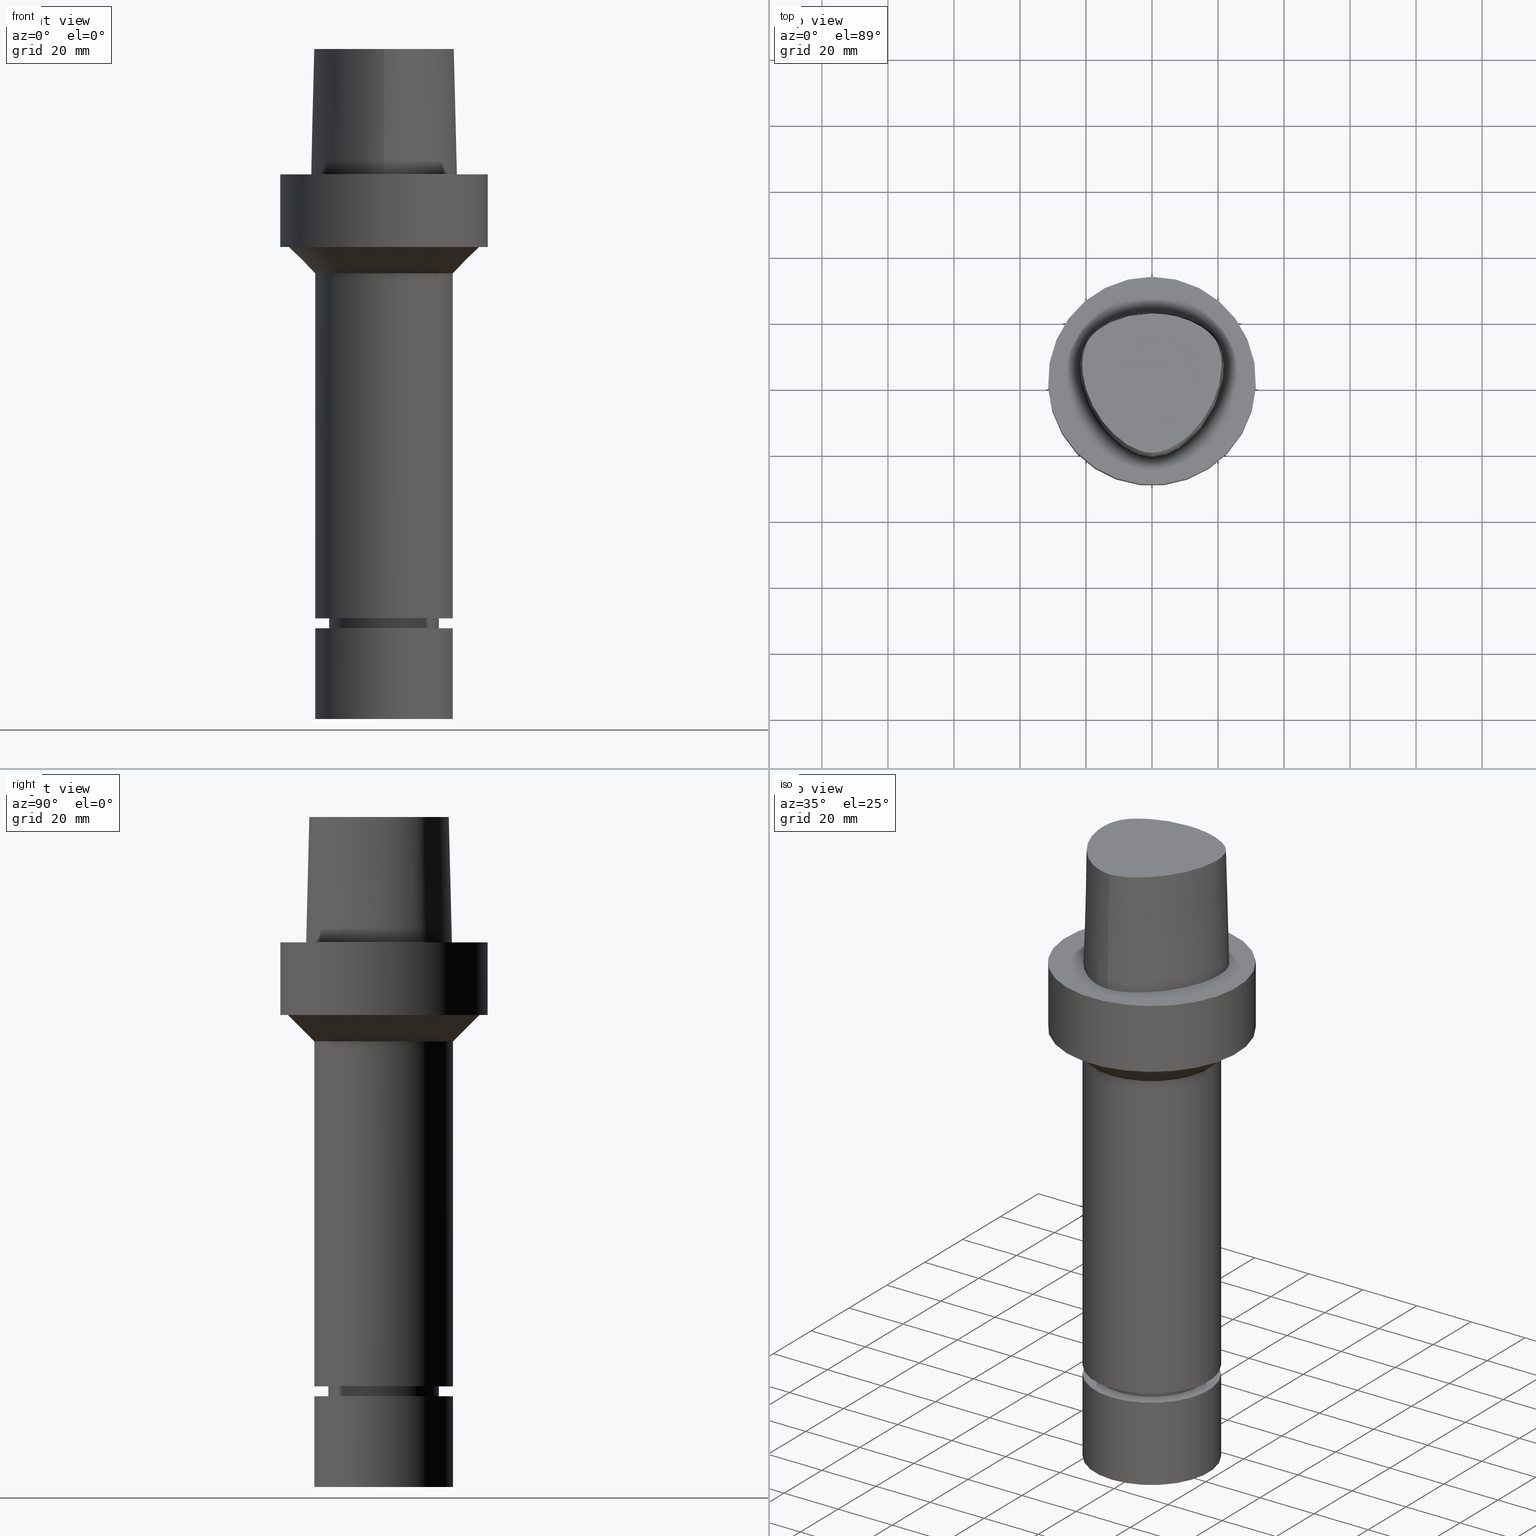
[diagram: canonical four-view strip — front | top / right | iso, engineering-drawing reading convention]
A machine part, canonical four-view strip (front | top / right | iso — engineering-drawing reading convention). The complete STEP part file that produces these views, byte-faithful:
ISO-10303-21;
HEADER;
FILE_DESCRIPTION((''),'1');
FILE_NAME('V:/90_\X2\53D65F9730C730FC30BF\X0\/00_\X2\6DE18DEF30C730FC30BF\X0\/ALL/CAPTO-BKUS\X2\52A05DE556F3\X0\_201801/C6-MEGAER/C6-MEGAER25-165NL.stp','2018-02-01T08:44:06',(''),(''),'Spatial Interop R21 SP3','Kubotek KeyCreator 2011 V10.0.2 (22737)',' ');
FILE_SCHEMA(('automotive_design'));
ENDSEC;
DATA;
#1=MECHANICAL_DESIGN_GEOMETRIC_PRESENTATION_REPRESENTATION(' ',(#14,#15,#16,#17,#18,#19,#20,#21,#22,#23,#24,#25,#26,#27,#28,#29,#30,#31,#32,#33,#34,#35,#36,#37,#38,#39,#40,#41,#42,#43,#44,#45,#46,#47,#48,#49,#50,#51,#52,#53),#10);
#2=PRODUCT_DEFINITION_CONTEXT('',#54,'design');
#3=APPLICATION_PROTOCOL_DEFINITION('INTERNATIONAL STANDARD','automotive_design',1994,#54);
#4=PRODUCT_CATEGORY_RELATIONSHIP('NONE','NONE',#55,#56);
#5=SHAPE_DEFINITION_REPRESENTATION(#57,#58);
#6=PRODUCT_DEFINITION_CONTEXT('',#59,'design');
#7=APPLICATION_PROTOCOL_DEFINITION('INTERNATIONAL STANDARD','automotive_design',1994,#59);
#8=PRODUCT_CATEGORY_RELATIONSHIP('NONE','NONE',#60,#61);
#9=SHAPE_DEFINITION_REPRESENTATION(#62,#63);
#10= (GEOMETRIC_REPRESENTATION_CONTEXT(3)GLOBAL_UNCERTAINTY_ASSIGNED_CONTEXT((#66))GLOBAL_UNIT_ASSIGNED_CONTEXT((#68,#69,#70))REPRESENTATION_CONTEXT('NONE','WORKSPACE'));
#14=STYLED_ITEM('',(#72),#73);
#15=STYLED_ITEM('',(#74),#75);
#16=STYLED_ITEM('',(#76,#77),#78);
#17=STYLED_ITEM('',(#79,#80),#81);
#18=STYLED_ITEM('',(#82,#83),#84);
#19=STYLED_ITEM('',(#85,#86),#87);
#20=STYLED_ITEM('',(#88),#89);
#21=STYLED_ITEM('',(#90),#91);
#22=STYLED_ITEM('',(#92),#93);
#23=STYLED_ITEM('',(#94),#95);
#24=STYLED_ITEM('',(#96,#97),#98);
#25=STYLED_ITEM('',(#99,#100),#101);
#26=STYLED_ITEM('',(#102,#103),#104);
#27=STYLED_ITEM('',(#105,#106),#107);
#28=STYLED_ITEM('',(#108,#109),#110);
#29=STYLED_ITEM('',(#111),#112);
#30=STYLED_ITEM('',(#113),#114);
#31=STYLED_ITEM('',(#115,#116),#117);
#32=STYLED_ITEM('',(#118),#119);
#33=STYLED_ITEM('',(#120),#121);
#34=STYLED_ITEM('',(#122,#123),#124);
#35=STYLED_ITEM('',(#125,#126),#127);
#36=STYLED_ITEM('',(#128,#129),#130);
#37=STYLED_ITEM('',(#131,#132),#133);
#38=STYLED_ITEM('',(#134,#135),#136);
#39=STYLED_ITEM('',(#137),#138);
#40=STYLED_ITEM('',(#139,#140),#141);
#41=STYLED_ITEM('',(#142,#143),#144);
#42=STYLED_ITEM('',(#145),#146);
#43=STYLED_ITEM('',(#147),#148);
#44=STYLED_ITEM('',(#149),#150);
#45=STYLED_ITEM('',(#151,#152),#153);
#46=STYLED_ITEM('',(#154),#155);
#47=STYLED_ITEM('',(#156),#157);
#48=STYLED_ITEM('',(#158,#159),#160);
#49=STYLED_ITEM('',(#161),#162);
#50=STYLED_ITEM('',(#163),#164);
#51=STYLED_ITEM('',(#165),#166);
#52=STYLED_ITEM('',(#167),#168);
#53=STYLED_ITEM('',(#169,#170),#171);
#54=APPLICATION_CONTEXT(' ');
#55=PRODUCT_CATEGORY('part','NONE');
#56=PRODUCT_RELATED_PRODUCT_CATEGORY('detail',' ',(#172));
#57=PRODUCT_DEFINITION_SHAPE('NONE','NONE',#173);
#58=ADVANCED_BREP_SHAPE_REPRESENTATION('Unnamed[1]',(#136,#174),#10);
#59=APPLICATION_CONTEXT(' ');
#60=PRODUCT_CATEGORY('part','NONE');
#61=PRODUCT_RELATED_PRODUCT_CATEGORY('detail',' ',(#175));
#62=PRODUCT_DEFINITION_SHAPE('NONE','NONE',#176);
#63=ADVANCED_BREP_SHAPE_REPRESENTATION('Unnamed[1]',(#117,#177),#10);
#66=UNCERTAINTY_MEASURE_WITH_UNIT(LENGTH_MEASURE(1.0E-006),#68,'','');
#68= (CONVERSION_BASED_UNIT('MILLIMETRE',#180)LENGTH_UNIT()NAMED_UNIT(#183));
#69= (NAMED_UNIT(#185)PLANE_ANGLE_UNIT()SI_UNIT($,.RADIAN.));
#70= (NAMED_UNIT(#185)SOLID_ANGLE_UNIT()SI_UNIT($,.STERADIAN.));
#72=PRESENTATION_STYLE_ASSIGNMENT((#191));
#73=EDGE_CURVE('Unnamed[1]',#192,#192,#193,.T.);
#74=PRESENTATION_STYLE_ASSIGNMENT((#194));
#75=EDGE_CURVE('Unnamed[1]',#195,#196,#197,.T.);
#76=PRESENTATION_STYLE_ASSIGNMENT((#198));
#77=PRESENTATION_STYLE_ASSIGNMENT((#199));
#78=ADVANCED_FACE('Unnamed[1]',(#200,#201),#202,.T.);
#79=PRESENTATION_STYLE_ASSIGNMENT((#203));
#80=PRESENTATION_STYLE_ASSIGNMENT((#204));
#81=ADVANCED_FACE('Unnamed[1]',(#205),#206,.T.);
#82=PRESENTATION_STYLE_ASSIGNMENT((#207));
#83=PRESENTATION_STYLE_ASSIGNMENT((#208));
#84=ADVANCED_FACE('Unnamed[1]',(#209),#210,.T.);
#85=PRESENTATION_STYLE_ASSIGNMENT((#211));
#86=PRESENTATION_STYLE_ASSIGNMENT((#212));
#87=ADVANCED_FACE('Unnamed[1]',(#213,#214),#215,.T.);
#88=PRESENTATION_STYLE_ASSIGNMENT((#216));
#89=EDGE_CURVE('Unnamed[1]',#217,#218,#219,.T.);
#90=PRESENTATION_STYLE_ASSIGNMENT((#220));
#91=EDGE_CURVE('Unnamed[1]',#221,#221,#222,.T.);
#92=PRESENTATION_STYLE_ASSIGNMENT((#223));
#93=EDGE_CURVE('Unnamed[1]',#224,#224,#225,.T.);
#94=PRESENTATION_STYLE_ASSIGNMENT((#226));
#95=EDGE_CURVE('Unnamed[1]',#227,#227,#228,.T.);
#96=PRESENTATION_STYLE_ASSIGNMENT((#229));
#97=PRESENTATION_STYLE_ASSIGNMENT((#230));
#98=ADVANCED_FACE('Unnamed[1]',(#231,#232),#233,.T.);
#99=PRESENTATION_STYLE_ASSIGNMENT((#234));
#100=PRESENTATION_STYLE_ASSIGNMENT((#235));
#101=ADVANCED_FACE('Unnamed[1]',(#236,#237),#238,.T.);
#102=PRESENTATION_STYLE_ASSIGNMENT((#239));
#103=PRESENTATION_STYLE_ASSIGNMENT((#240));
#104=ADVANCED_FACE('Unnamed[1]',(#241),#242,.T.);
#105=PRESENTATION_STYLE_ASSIGNMENT((#243));
#106=PRESENTATION_STYLE_ASSIGNMENT((#244));
#107=ADVANCED_FACE('Unnamed[1]',(#245),#246,.T.);
#108=PRESENTATION_STYLE_ASSIGNMENT((#247));
#109=PRESENTATION_STYLE_ASSIGNMENT((#248));
#110=ADVANCED_FACE('Unnamed[1]',(#249,#250),#251,.T.);
#111=PRESENTATION_STYLE_ASSIGNMENT((#252));
#112=EDGE_CURVE('Unnamed[1]',#217,#253,#254,.T.);
#113=PRESENTATION_STYLE_ASSIGNMENT((#255));
#114=EDGE_CURVE('Unnamed[1]',#217,#196,#256,.T.);
#115=PRESENTATION_STYLE_ASSIGNMENT((#257));
#116=PRESENTATION_STYLE_ASSIGNMENT((#258));
#117=MANIFOLD_SOLID_BREP('Unnamed[1]',#259);
#118=PRESENTATION_STYLE_ASSIGNMENT((#260));
#119=EDGE_CURVE('Unnamed[1]',#261,#261,#262,.T.);
#120=PRESENTATION_STYLE_ASSIGNMENT((#263));
#121=EDGE_CURVE('Unnamed[1]',#218,#217,#264,.T.);
#122=PRESENTATION_STYLE_ASSIGNMENT((#265));
#123=PRESENTATION_STYLE_ASSIGNMENT((#266));
#124=ADVANCED_FACE('Unnamed[1]',(#267,#268),#269,.T.);
#125=PRESENTATION_STYLE_ASSIGNMENT((#270));
#126=PRESENTATION_STYLE_ASSIGNMENT((#271));
#127=ADVANCED_FACE('Unnamed[1]',(#272,#273),#274,.T.);
#128=PRESENTATION_STYLE_ASSIGNMENT((#275));
#129=PRESENTATION_STYLE_ASSIGNMENT((#276));
#130=ADVANCED_FACE('Unnamed[1]',(#277),#278,.T.);
#131=PRESENTATION_STYLE_ASSIGNMENT((#279));
#132=PRESENTATION_STYLE_ASSIGNMENT((#280));
#133=ADVANCED_FACE('Unnamed[1]',(#281,#282),#283,.T.);
#134=PRESENTATION_STYLE_ASSIGNMENT((#284));
#135=PRESENTATION_STYLE_ASSIGNMENT((#285));
#136=MANIFOLD_SOLID_BREP('Unnamed[1]',#286);
#137=PRESENTATION_STYLE_ASSIGNMENT((#287));
#138=EDGE_CURVE('Unnamed[1]',#288,#288,#289,.T.);
#139=PRESENTATION_STYLE_ASSIGNMENT((#290));
#140=PRESENTATION_STYLE_ASSIGNMENT((#291));
#141=ADVANCED_FACE('Unnamed[1]',(#292),#293,.T.);
#142=PRESENTATION_STYLE_ASSIGNMENT((#294));
#143=PRESENTATION_STYLE_ASSIGNMENT((#295));
#144=ADVANCED_FACE('Unnamed[1]',(#296,#297),#298,.T.);
#145=PRESENTATION_STYLE_ASSIGNMENT((#299));
#146=EDGE_CURVE('Unnamed[1]',#300,#300,#301,.T.);
#147=PRESENTATION_STYLE_ASSIGNMENT((#302));
#148=EDGE_CURVE('Unnamed[1]',#196,#253,#303,.T.);
#149=PRESENTATION_STYLE_ASSIGNMENT((#304));
#150=EDGE_CURVE('Unnamed[1]',#305,#305,#306,.T.);
#151=PRESENTATION_STYLE_ASSIGNMENT((#307));
#152=PRESENTATION_STYLE_ASSIGNMENT((#308));
#153=ADVANCED_FACE('Unnamed[1]',(#309,#310),#311,.T.);
#154=PRESENTATION_STYLE_ASSIGNMENT((#312));
#155=EDGE_CURVE('Unnamed[1]',#313,#313,#314,.T.);
#156=PRESENTATION_STYLE_ASSIGNMENT((#315));
#157=EDGE_CURVE('Unnamed[1]',#316,#316,#317,.T.);
#158=PRESENTATION_STYLE_ASSIGNMENT((#318));
#159=PRESENTATION_STYLE_ASSIGNMENT((#319));
#160=ADVANCED_FACE('Unnamed[1]',(#320,#321),#322,.T.);
#161=PRESENTATION_STYLE_ASSIGNMENT((#323));
#162=EDGE_CURVE('Unnamed[1]',#218,#195,#324,.T.);
#163=PRESENTATION_STYLE_ASSIGNMENT((#325));
#164=EDGE_CURVE('Unnamed[1]',#326,#326,#327,.T.);
#165=PRESENTATION_STYLE_ASSIGNMENT((#328));
#166=EDGE_CURVE('Unnamed[1]',#253,#195,#329,.T.);
#167=PRESENTATION_STYLE_ASSIGNMENT((#330));
#168=EDGE_CURVE('Unnamed[1]',#331,#331,#332,.T.);
#169=PRESENTATION_STYLE_ASSIGNMENT((#333));
#170=PRESENTATION_STYLE_ASSIGNMENT((#334));
#171=ADVANCED_FACE('Unnamed[1]',(#335),#336,.T.);
#172=PRODUCT('Unnamed[1]','Unnamed[1]','PART-Unnamed[1]-DESC',(#337));
#173=PRODUCT_DEFINITION('NONE','NONE',#338,#2);
#174=AXIS2_PLACEMENT_3D('',#339,#340,#341);
#175=PRODUCT('Unnamed[1]','Unnamed[1]','PART-Unnamed[1]-DESC',(#342));
#176=PRODUCT_DEFINITION('NONE','NONE',#343,#6);
#177=AXIS2_PLACEMENT_3D('',#344,#345,#346);
#180=LENGTH_MEASURE_WITH_UNIT(LENGTH_MEASURE(1.0),#347);
#183=DIMENSIONAL_EXPONENTS(1.0,0.0,0.0,0.0,0.0,0.0,0.0);
#185=DIMENSIONAL_EXPONENTS(0.0,0.0,0.0,0.0,0.0,0.0,0.0);
#191=CURVE_STYLE('',#348,POSITIVE_LENGTH_MEASURE(1000.0),#349);
#192=VERTEX_POINT('',#350);
#193=CIRCLE('',#351,16.7500000000017);
#194=CURVE_STYLE('',#352,POSITIVE_LENGTH_MEASURE(1000.0),#353);
#195=VERTEX_POINT('',#354);
#196=VERTEX_POINT('',#355);
#197=B_SPLINE_CURVE_WITH_KNOTS('',3,(#356,#357,#358,#359,#360,#361,#362,#363,#364,#365,#366,#367,#368,#369,#370,#371,#372,#373,#374,#375,#376,#377,#378,#379,#380,#381,#382,#383,#384,#385,#386,#387),.UNSPECIFIED.,.F.,.F.,(4,2,2,2,2,2,2,2,2,2,2,2,2,2,2,4),(6.6151339308743,6.90353802293409,7.19194211499389,7.48034620705369,7.76875029911348,8.3273781966476,8.88600609418171,10.0632582234986,10.5220146921826,10.9807711608666,11.2101493952086,11.4395276295506,11.8982840982346,12.4281394376607,12.8292036497046,13.2302678617486),.UNSPECIFIED.);
#198=SURFACE_STYLE_USAGE(.BOTH.,#388);
#199=CURVE_STYLE('',#389,POSITIVE_LENGTH_MEASURE(1000.0),#390);
#200=FACE_BOUND('',#391,.T.);
#201=FACE_BOUND('',#392,.T.);
#202=CYLINDRICAL_SURFACE('',#393,31.5);
#203=SURFACE_STYLE_USAGE(.BOTH.,#394);
#204=CURVE_STYLE('',#395,POSITIVE_LENGTH_MEASURE(1000.0),#396);
#205=FACE_OUTER_BOUND('',#397,.T.);
#206=B_SPLINE_SURFACE_WITH_KNOTS('',3,3,((#398,#399,#400,#401),(#402,#403,#404,#405),(#406,#407,#408,#409),(#410,#411,#412,#413),(#414,#415,#416,#417),(#418,#419,#420,#421),(#422,#423,#424,#425),(#426,#427,#428,#429),(#430,#431,#432,#433),(#434,#435,#436,#437),(#438,#439,#440,#441),(#442,#443,#444,#445),(#446,#447,#448,#449),(#450,#451,#452,#453),(#454,#455,#456,#457),(#458,#459,#460,#461),(#462,#463,#464,#465),(#466,#467,#468,#469)),.UNSPECIFIED.,.F.,.F.,.F.,(4,1,1,1,1,1,1,1,1,2,1,1,1,1,4),(4,4),(-6.6151339308743,-6.20168806019465,-5.78824218951501,-5.37479631883537,-4.96135044815572,-4.13445870679644,-3.30756696543715,-2.89412109475751,-2.48067522407786,-2.06722935339822,-1.65378348271857,-1.24033761203893,-0.826891741359287,-0.413445870679644,0.0),(-3.8,0.0),.UNSPECIFIED.);
#207=SURFACE_STYLE_USAGE(.BOTH.,#470);
#208=CURVE_STYLE('',#471,POSITIVE_LENGTH_MEASURE(1000.0),#472);
#209=FACE_OUTER_BOUND('',#473,.T.);
#210=CONICAL_SURFACE('',#474,1.0,0.0249931148600041);
#211=SURFACE_STYLE_USAGE(.BOTH.,#475);
#212=CURVE_STYLE('',#476,POSITIVE_LENGTH_MEASURE(1000.0),#477);
#213=FACE_BOUND('',#478,.T.);
#214=FACE_BOUND('',#479,.T.);
#215=CONICAL_SURFACE('',#480,15.4500000000003,0.52359877559807);
#216=CURVE_STYLE('',#481,POSITIVE_LENGTH_MEASURE(1000.0),#482);
#217=VERTEX_POINT('',#483);
#218=VERTEX_POINT('',#484);
#219=B_SPLINE_CURVE_WITH_KNOTS('',3,(#485,#486,#487,#488,#489,#490,#491,#492,#493,#494,#495,#496,#497,#498,#499,#500),.UNSPECIFIED.,.F.,.F.,(4,1,1,1,1,1,1,1,1,1,1,1,1,4),(0.0,0.447924670568964,0.9388024242536,1.50591409090711,2.07314340012323,2.72424957442464,3.2253501842849,3.80982102049476,4.34867996267067,4.85900173381144,5.37972031856977,6.03459825488646,6.61113557741484,6.61513393087395),.UNSPECIFIED.);
#220=CURVE_STYLE('',#501,POSITIVE_LENGTH_MEASURE(1000.0),#502);
#221=VERTEX_POINT('',#503);
#222=CIRCLE('',#504,21.0);
#223=CURVE_STYLE('',#505,POSITIVE_LENGTH_MEASURE(1000.0),#506);
#224=VERTEX_POINT('',#507);
#225=CIRCLE('',#508,31.5);
#226=CURVE_STYLE('',#509,POSITIVE_LENGTH_MEASURE(1000.0),#510);
#227=VERTEX_POINT('',#511);
#228=CIRCLE('',#512,16.7499999999907);
#229=SURFACE_STYLE_USAGE(.BOTH.,#513);
#230=CURVE_STYLE('',#514,POSITIVE_LENGTH_MEASURE(1000.0),#515);
#231=FACE_BOUND('',#516,.T.);
#232=FACE_OUTER_BOUND('',#517,.T.);
#233=PLANE('',#518);
#234=SURFACE_STYLE_USAGE(.BOTH.,#519);
#235=CURVE_STYLE('',#520,POSITIVE_LENGTH_MEASURE(1000.0),#521);
#236=FACE_BOUND('',#522,.T.);
#237=FACE_OUTER_BOUND('',#523,.T.);
#238=PLANE('',#524);
#239=SURFACE_STYLE_USAGE(.BOTH.,#525);
#240=CURVE_STYLE('',#526,POSITIVE_LENGTH_MEASURE(1000.0),#527);
#241=FACE_OUTER_BOUND('',#528,.T.);
#242=PLANE('',#529);
#243=SURFACE_STYLE_USAGE(.BOTH.,#530);
#244=CURVE_STYLE('',#531,POSITIVE_LENGTH_MEASURE(1000.0),#532);
#245=FACE_OUTER_BOUND('',#533,.T.);
#246=PLANE('',#534);
#247=SURFACE_STYLE_USAGE(.BOTH.,#535);
#248=CURVE_STYLE('',#536,POSITIVE_LENGTH_MEASURE(1000.0),#537);
#249=FACE_OUTER_BOUND('',#538,.T.);
#250=FACE_BOUND('',#539,.T.);
#251=PLANE('',#540);
#252=CURVE_STYLE('',#541,POSITIVE_LENGTH_MEASURE(1000.0),#542);
#253=VERTEX_POINT('',#543);
#254=LINE('',#544,#545);
#255=CURVE_STYLE('',#546,POSITIVE_LENGTH_MEASURE(1000.0),#547);
#256=LINE('',#548,#549);
#257=SURFACE_STYLE_USAGE(.BOTH.,#550);
#258=CURVE_STYLE('',#551,POSITIVE_LENGTH_MEASURE(1000.0),#552);
#259=CLOSED_SHELL('',(#104,#141,#133));
#260=CURVE_STYLE('',#553,POSITIVE_LENGTH_MEASURE(1000.0),#554);
#261=VERTEX_POINT('',#555);
#262=CIRCLE('',#556,31.5);
#263=CURVE_STYLE('',#557,POSITIVE_LENGTH_MEASURE(1000.0),#558);
#264=B_SPLINE_CURVE_WITH_KNOTS('',3,(#559,#560,#561,#562,#563,#564,#565,#566,#567,#568,#569,#570,#571,#572,#573,#574),.UNSPECIFIED.,.F.,.F.,(4,1,1,1,1,1,1,1,1,1,1,1,1,4),(6.61513393087476,6.99917207152274,7.48193246986995,7.96289324787093,8.45540287038584,9.10291653679981,9.67129810936083,10.1618749681153,10.6358867802489,11.1080734988593,11.6043706019633,12.09451993853,12.6985979284494,13.2302678617486),.UNSPECIFIED.);
#265=SURFACE_STYLE_USAGE(.BOTH.,#575);
#266=CURVE_STYLE('',#576,POSITIVE_LENGTH_MEASURE(1000.0),#577);
#267=FACE_BOUND('',#578,.T.);
#268=FACE_BOUND('',#579,.T.);
#269=CYLINDRICAL_SURFACE('',#580,16.0);
#270=SURFACE_STYLE_USAGE(.BOTH.,#581);
#271=CURVE_STYLE('',#582,POSITIVE_LENGTH_MEASURE(1000.0),#583);
#272=FACE_BOUND('',#584,.T.);
#273=FACE_BOUND('',#585,.T.);
#274=CONICAL_SURFACE('',#586,16.3750000000008,1.04719755120057);
#275=SURFACE_STYLE_USAGE(.BOTH.,#587);
#276=CURVE_STYLE('',#588,POSITIVE_LENGTH_MEASURE(1000.0),#589);
#277=FACE_OUTER_BOUND('',#590,.T.);
#278=B_SPLINE_SURFACE_WITH_KNOTS('',3,3,((#591,#592,#593,#594),(#595,#596,#597,#598),(#599,#600,#601,#602),(#603,#604,#605,#606),(#607,#608,#609,#610),(#611,#612,#613,#614),(#615,#616,#617,#618),(#619,#620,#621,#622),(#623,#624,#625,#626),(#627,#628,#629,#630),(#631,#632,#633,#634),(#635,#636,#637,#638),(#639,#640,#641,#642),(#643,#644,#645,#646),(#647,#648,#649,#650),(#651,#652,#653,#654),(#655,#656,#657,#658)),.UNSPECIFIED.,.F.,.F.,.F.,(4,1,1,1,1,1,1,1,1,1,1,1,1,1,4),(4,4),(-13.2302678617486,-12.816821991069,-12.4033761203893,-11.9899302497097,-11.57648437903,-11.1630385083504,-10.9563155730106,-10.7495926376707,-10.3361467669911,-9.92270089631145,-9.09580915495216,-8.26891741359287,-7.44202567223358,-7.02857980155394,-6.6151339308743),(-3.8,0.0),.UNSPECIFIED.);
#279=SURFACE_STYLE_USAGE(.BOTH.,#659);
#280=CURVE_STYLE('',#660,POSITIVE_LENGTH_MEASURE(1000.0),#661);
#281=FACE_BOUND('',#662,.T.);
#282=FACE_BOUND('',#663,.T.);
#283=CYLINDRICAL_SURFACE('',#664,21.0);
#284=SURFACE_STYLE_USAGE(.BOTH.,#665);
#285=CURVE_STYLE('',#666,POSITIVE_LENGTH_MEASURE(1000.0),#667);
#286=CLOSED_SHELL('',(#110,#78,#98,#144,#160,#101,#153,#127,#124,#87,#171,#130,#81,#84,#107));
#287=CURVE_STYLE('',#668,POSITIVE_LENGTH_MEASURE(1000.0),#669);
#288=VERTEX_POINT('',#670);
#289=CIRCLE('',#671,21.0);
#290=SURFACE_STYLE_USAGE(.BOTH.,#672);
#291=CURVE_STYLE('',#673,POSITIVE_LENGTH_MEASURE(1000.0),#674);
#292=FACE_OUTER_BOUND('',#675,.T.);
#293=PLANE('',#676);
#294=SURFACE_STYLE_USAGE(.BOTH.,#677);
#295=CURVE_STYLE('',#678,POSITIVE_LENGTH_MEASURE(1000.0),#679);
#296=FACE_BOUND('',#680,.T.);
#297=FACE_BOUND('',#681,.T.);
#298=CONICAL_SURFACE('',#682,25.0000000000004,0.785398163397454);
#299=CURVE_STYLE('',#683,POSITIVE_LENGTH_MEASURE(1000.0),#684);
#300=VERTEX_POINT('',#685);
#301=CIRCLE('',#686,16.0);
#302=CURVE_STYLE('',#687,POSITIVE_LENGTH_MEASURE(1000.0),#688);
#303=CIRCLE('',#689,0.949936168379101);
#304=CURVE_STYLE('',#690,POSITIVE_LENGTH_MEASURE(1000.0),#691);
#305=VERTEX_POINT('',#692);
#306=CIRCLE('',#693,14.9000000000006);
#307=SURFACE_STYLE_USAGE(.BOTH.,#694);
#308=CURVE_STYLE('',#695,POSITIVE_LENGTH_MEASURE(1000.0),#696);
#309=FACE_BOUND('',#697,.T.);
#310=FACE_BOUND('',#698,.T.);
#311=CYLINDRICAL_SURFACE('',#699,16.7499999999962);
#312=CURVE_STYLE('',#700,POSITIVE_LENGTH_MEASURE(1000.0),#701);
#313=VERTEX_POINT('',#702);
#314=CIRCLE('',#703,16.0);
#315=CURVE_STYLE('',#704,POSITIVE_LENGTH_MEASURE(1000.0),#705);
#316=VERTEX_POINT('',#706);
#317=CIRCLE('',#707,21.0000000000004);
#318=SURFACE_STYLE_USAGE(.BOTH.,#708);
#319=CURVE_STYLE('',#709,POSITIVE_LENGTH_MEASURE(1000.0),#710);
#320=FACE_BOUND('',#711,.T.);
#321=FACE_BOUND('',#712,.T.);
#322=CYLINDRICAL_SURFACE('',#713,21.0000000000002);
#323=CURVE_STYLE('',#714,POSITIVE_LENGTH_MEASURE(1000.0),#715);
#324=LINE('',#716,#717);
#325=CURVE_STYLE('',#718,POSITIVE_LENGTH_MEASURE(1000.0),#719);
#326=VERTEX_POINT('',#720);
#327=CIRCLE('',#721,29.0000000000004);
#328=CURVE_STYLE('',#722,POSITIVE_LENGTH_MEASURE(1000.0),#723);
#329=B_SPLINE_CURVE_WITH_KNOTS('',3,(#724,#725,#726,#727,#728,#729,#730,#731,#732,#733,#734,#735,#736,#737,#738,#739,#740,#741,#742,#743,#744,#745,#746,#747,#748,#749,#750,#751,#752,#753),.UNSPECIFIED.,.F.,.F.,(4,2,2,2,2,2,2,2,2,2,2,2,2,2,4),(0.0,0.576808184119594,1.15361636823919,1.43293031700624,1.7122442657733,1.99155821454036,2.27087216330741,2.85949822796588,3.15381126029511,3.44812429262434,4.36563722999232,5.28315016736029,5.8130055067864,6.21406971883035,6.6151339308743),.UNSPECIFIED.);
#330=CURVE_STYLE('',#754,POSITIVE_LENGTH_MEASURE(1000.0),#755);
#331=VERTEX_POINT('',#756);
#332=CIRCLE('',#757,21.0);
#333=SURFACE_STYLE_USAGE(.BOTH.,#758);
#334=CURVE_STYLE('',#759,POSITIVE_LENGTH_MEASURE(1000.0),#760);
#335=FACE_OUTER_BOUND('',#761,.T.);
#336=PLANE('',#762);
#337=PRODUCT_CONTEXT('',#54,'mechanical');
#338=PRODUCT_DEFINITION_FORMATION_WITH_SPECIFIED_SOURCE(' ','NONE',#172,.NOT_KNOWN.);
#339=CARTESIAN_POINT('',(0.0,0.0,0.0));
#340=DIRECTION('',(0.0,0.0,1.0));
#341=DIRECTION('',(1.0,0.0,0.0));
#342=PRODUCT_CONTEXT('',#59,'mechanical');
#343=PRODUCT_DEFINITION_FORMATION_WITH_SPECIFIED_SOURCE(' ','NONE',#175,.NOT_KNOWN.);
#344=CARTESIAN_POINT('',(0.0,0.0,0.0));
#345=DIRECTION('',(0.0,0.0,1.0));
#346=DIRECTION('',(1.0,0.0,0.0));
#347= (NAMED_UNIT(#183)LENGTH_UNIT()SI_UNIT(.MILLI.,.METRE.));
#348=DRAUGHTING_PRE_DEFINED_CURVE_FONT('continuous');
#349=COLOUR_RGB('',0.0,1.0,0.0);
#350=CARTESIAN_POINT('',(8.60114298906023E-015,16.7500000000017,-140.467324865401));
#351=AXIS2_PLACEMENT_3D('',#764,#765,#766);
#352=DRAUGHTING_PRE_DEFINED_CURVE_FONT('continuous');
#353=COLOUR_RGB('',0.0,1.0,0.0);
#354=CARTESIAN_POINT('',(0.04359356758149,-23.4691235068931,0.0));
#355=CARTESIAN_POINT('',(0.044682985379347,20.6765087343109,0.0));
#356=CARTESIAN_POINT('',(0.04359356758149,-23.4691235068931,0.0));
#357=CARTESIAN_POINT('',(1.1004598519742,-23.4637201011149,7.105427E-015));
#358=CARTESIAN_POINT('',(2.14400887535539,-23.2973076591387,0.0));
#359=CARTESIAN_POINT('',(4.1424681795584,-22.7592077909815,0.0));
#360=CARTESIAN_POINT('',(5.09815205870591,-22.390397570418,-7.105427E-015));
#361=CARTESIAN_POINT('',(6.9351099930747,-21.5078613163183,-7.105427E-015));
#362=CARTESIAN_POINT('',(7.80351845767777,-20.9996631554928,-7.105427E-015));
#363=CARTESIAN_POINT('',(9.46943987011575,-19.8886274331692,-7.105427E-015));
#364=CARTESIAN_POINT('',(10.2666299015956,-19.2853057570752,-7.105427E-015));
#365=CARTESIAN_POINT('',(12.5026318141948,-17.3963733278614,2.131628E-014));
#366=CARTESIAN_POINT('',(13.8422909676271,-16.0046937991299,0.0));
#367=CARTESIAN_POINT('',(16.2509822407142,-13.0101546997628,1.421085E-014));
#368=CARTESIAN_POINT('',(17.3206577927156,-11.4078127381174,-7.105427E-015));
#369=CARTESIAN_POINT('',(20.1948648257688,-6.17855164445771,-7.105427E-015));
#370=CARTESIAN_POINT('',(21.5264998810762,-2.27044916431131,-7.105427E-015));
#371=CARTESIAN_POINT('',(22.1083077940609,3.36511341978747,-7.105427E-015));
#372=CARTESIAN_POINT('',(22.1437891560423,4.95691742010578,-7.105427E-015));
#373=CARTESIAN_POINT('',(21.7438554055,8.21486313336421,-7.105427E-015));
#374=CARTESIAN_POINT('',(21.2813238062713,9.87761881981491,0.0));
#375=CARTESIAN_POINT('',(20.1794569882097,12.0317423962685,0.0));
#376=CARTESIAN_POINT('',(19.7024138468366,12.7593191234763,-7.105427E-015));
#377=CARTESIAN_POINT('',(18.6262164065722,14.0443851003557,-7.105427E-015));
#378=CARTESIAN_POINT('',(18.0388107856225,14.6116679410871,0.0));
#379=CARTESIAN_POINT('',(16.1284788612342,16.197117807416,7.105427E-015));
#380=CARTESIAN_POINT('',(14.7618818860482,17.03003182658,0.0));
#381=CARTESIAN_POINT('',(11.6856166176821,18.5458506425855,0.0));
#382=CARTESIAN_POINT('',(9.96274972961394,19.1800623227596,0.0));
#383=CARTESIAN_POINT('',(6.84723700488339,20.0025241142556,0.0));
#384=CARTESIAN_POINT('',(5.4719505740624,20.2496312304465,0.0));
#385=CARTESIAN_POINT('',(2.7387517037224,20.5467807312008,0.0));
#386=CARTESIAN_POINT('',(1.38248716057628,20.6117898211938,0.0));
#387=CARTESIAN_POINT('',(0.044682985379347,20.6765087343109,0.0));
#388=SURFACE_SIDE_STYLE('',(#767));
#389=DRAUGHTING_PRE_DEFINED_CURVE_FONT('continuous');
#390=COLOUR_RGB('',0.0,1.0,0.0);
#391=EDGE_LOOP('',(#768));
#392=EDGE_LOOP('',(#769));
#393=AXIS2_PLACEMENT_3D('',#770,#771,#772);
#394=SURFACE_SIDE_STYLE('',(#773));
#395=DRAUGHTING_PRE_DEFINED_CURVE_FONT('continuous');
#396=COLOUR_RGB('',0.0,1.0,0.0);
#397=EDGE_LOOP('',(#774,#775,#776,#777));
#398=CARTESIAN_POINT('',(0.038736923393866,-22.5191997536361,38.0));
#399=CARTESIAN_POINT('',(0.04035580478973,-22.8358410047159,25.3333333333066));
#400=CARTESIAN_POINT('',(0.041974686185626,-23.1524822558133,12.6666666666934));
#401=CARTESIAN_POINT('',(0.04359356758149,-23.4691235068931,0.0));
#402=CARTESIAN_POINT('',(-1.33786123484754,-22.5261650259856,38.0));
#403=CARTESIAN_POINT('',(-1.38240731367927,-22.8430399310626,25.3333333333066));
#404=CARTESIAN_POINT('',(-1.42695339249092,-23.1599147815484,12.6666666666934));
#405=CARTESIAN_POINT('',(-1.4714994713963,-23.4767895315797,0.0));
#406=CARTESIAN_POINT('',(-4.08909358431842,-21.9268839879558,38.0));
#407=CARTESIAN_POINT('',(-4.20580731135515,-22.2249725500078,25.3333333333066));
#408=CARTESIAN_POINT('',(-4.32252104640446,-22.5230611651922,12.6666666666934));
#409=CARTESIAN_POINT('',(-4.43923476371401,-22.821149804767,0.0));
#410=CARTESIAN_POINT('',(-7.8333083619947,-19.9973514861616,38.0));
#411=CARTESIAN_POINT('',(-8.00568301809614,-20.2649260859405,25.3333333333066));
#412=CARTESIAN_POINT('',(-8.1780576640789,-20.532500564315,12.6666666666934));
#413=CARTESIAN_POINT('',(-8.35043230079961,-20.8000751253325,0.0));
#414=CARTESIAN_POINT('',(-11.1035071147626,-17.450554957873,38.0));
#415=CARTESIAN_POINT('',(-11.3173048160562,-17.6855739222454,25.3333333333066));
#416=CARTESIAN_POINT('',(-11.5311025116181,-17.9205928617968,12.6666666666934));
#417=CARTESIAN_POINT('',(-11.744900222602,-18.1556117874078,0.0));
#418=CARTESIAN_POINT('',(-14.9379535189057,-13.461132049697,38.0));
#419=CARTESIAN_POINT('',(-15.191622410671,-13.6542981711372,25.3333333333066));
#420=CARTESIAN_POINT('',(-15.4452913389853,-13.8474645327131,12.6666666666934));
#421=CARTESIAN_POINT('',(-15.6989602501314,-14.0406306929147,0.0));
#422=CARTESIAN_POINT('',(-18.6681263017223,-7.59391757463204,38.0));
#423=CARTESIAN_POINT('',(-18.9571800800711,-7.73136168081928,25.3333333333066));
#424=CARTESIAN_POINT('',(-19.2462337287194,-7.86880572399774,12.6666666666934));
#425=CARTESIAN_POINT('',(-19.5352875070682,-8.00624990770787,0.0));
#426=CARTESIAN_POINT('',(-20.7857899858339,-0.952862819790525,38.0));
#427=CARTESIAN_POINT('',(-21.0973808305434,-1.02218087467418,25.3333333333066));
#428=CARTESIAN_POINT('',(-21.408971677436,-1.09149899580772,12.6666666666934));
#429=CARTESIAN_POINT('',(-21.7205626190491,-1.16081708945282,0.0));
#430=CARTESIAN_POINT('',(-21.2911760556836,4.5469215763113,38.0));
#431=CARTESIAN_POINT('',(-21.610337904926,4.54783292082248,25.3333333333066));
#432=CARTESIAN_POINT('',(-21.9294998290918,4.54874426225691,12.6666666666934));
#433=CARTESIAN_POINT('',(-22.2486616783342,4.54965558738736,0.0));
#434=CARTESIAN_POINT('',(-20.7345309521958,8.74909381391006,38.0));
#435=CARTESIAN_POINT('',(-21.0445680426217,8.83349432450556,25.3333333333066));
#436=CARTESIAN_POINT('',(-21.3546050933631,8.91789488065068,12.6666666666934));
#437=CARTESIAN_POINT('',(-21.6646421256468,9.00229539124618,0.0));
#438=CARTESIAN_POINT('',(-19.5531512296439,11.3174844040833,38.0));
#439=CARTESIAN_POINT('',(-19.8336219699984,11.4710077674213,25.3333333333066));
#440=CARTESIAN_POINT('',(-20.1140927680763,11.6245311337623,12.6666666666934));
#441=CARTESIAN_POINT('',(-20.3945635471922,11.7780544971003,0.0));
#442=CARTESIAN_POINT('',(-17.9100913688793,13.524027510437,38.0));
#443=CARTESIAN_POINT('',(-18.1375785458768,13.7487051053655,25.3333333333066));
#444=CARTESIAN_POINT('',(-18.365065665211,13.9733826973296,12.6666666666934));
#445=CARTESIAN_POINT('',(-18.5925528034471,14.1980602922581,0.0));
#446=CARTESIAN_POINT('',(-15.7996349656398,15.3762170634413,38.0));
#447=CARTESIAN_POINT('',(-15.9739761051783,15.6434029846179,25.3333333333066));
#448=CARTESIAN_POINT('',(-16.1483172726872,15.9105889315134,12.6666666666934));
#449=CARTESIAN_POINT('',(-16.3226584122258,16.1777748720707,0.0));
#450=CARTESIAN_POINT('',(-12.1175640002064,17.3825162484012,38.0));
#451=CARTESIAN_POINT('',(-12.2475895903055,17.6724842099619,25.3333333333066));
#452=CARTESIAN_POINT('',(-12.3776152070492,17.9624521925696,12.6666666666934));
#453=CARTESIAN_POINT('',(-12.5076407874579,18.2524201541303,0.0));
#454=CARTESIAN_POINT('',(-8.21761151654222,18.7588585989994,38.0));
#455=CARTESIAN_POINT('',(-8.30099497910627,19.0656105427881,25.3333333333066));
#456=CARTESIAN_POINT('',(-8.38437843913309,19.3723624535439,12.6666666666934));
#457=CARTESIAN_POINT('',(-8.46776192107786,19.679114377952,0.0));
#458=CARTESIAN_POINT('',(-4.13466093881225,19.5396850837055,38.0));
#459=CARTESIAN_POINT('',(-4.16658562115465,19.8557172636973,25.3333333333066));
#460=CARTESIAN_POINT('',(-4.19851029939059,20.1717494367229,12.6666666666934));
#461=CARTESIAN_POINT('',(-4.23043497193604,20.487781597334,0.0));
#462=CARTESIAN_POINT('',(-1.37917220403684,19.6638560588908,38.0));
#463=CARTESIAN_POINT('',(-1.39382511685176,19.98016223565,25.3333333333066));
#464=CARTESIAN_POINT('',(-1.40847802945569,20.296468399885,12.6666666666934));
#465=CARTESIAN_POINT('',(-1.42313094248379,20.6127745766442,0.0));
#466=CARTESIAN_POINT('',(-0.001218547003662,19.7276821925089,38.0));
#467=CARTESIAN_POINT('',(-0.015869696232855,20.043988446791,25.3333333333066));
#468=CARTESIAN_POINT('',(-0.030520845462092,20.3602947010464,12.6666666666934));
#469=CARTESIAN_POINT('',(-0.045171994691285,20.6766009553285,0.0));
#470=SURFACE_SIDE_STYLE('',(#778));
#471=DRAUGHTING_PRE_DEFINED_CURVE_FONT('continuous');
#472=COLOUR_RGB('',0.0,1.0,0.0);
#473=EDGE_LOOP('',(#779,#780,#781));
#474=AXIS2_PLACEMENT_3D('',#782,#783,#784);
#475=SURFACE_SIDE_STYLE('',(#785));
#476=DRAUGHTING_PRE_DEFINED_CURVE_FONT('continuous');
#477=COLOUR_RGB('',0.0,1.0,0.0);
#478=EDGE_LOOP('',(#786));
#479=EDGE_LOOP('',(#787));
#480=AXIS2_PLACEMENT_3D('',#788,#789,#790);
#481=DRAUGHTING_PRE_DEFINED_CURVE_FONT('continuous');
#482=COLOUR_RGB('',0.0,1.0,0.0);
#483=CARTESIAN_POINT('',(-0.001218547003662,19.7276821925089,38.0));
#484=CARTESIAN_POINT('',(0.038736923393866,-22.5191997536361,38.0));
#485=CARTESIAN_POINT('',(-0.001218547003662,19.7276821925089,38.0));
#486=CARTESIAN_POINT('',(-1.49408492138443,19.6585333605309,38.0));
#487=CARTESIAN_POINT('',(-4.62297391420352,19.513604770166,38.0));
#488=CARTESIAN_POINT('',(-9.56160616752212,18.4291575730197,38.0));
#489=CARTESIAN_POINT('',(-14.5427684976927,16.2697452580488,38.0));
#490=CARTESIAN_POINT('',(-19.4315563551602,12.5302108980807,38.0));
#491=CARTESIAN_POINT('',(-21.306358833612,6.76352894547076,38.0));
#492=CARTESIAN_POINT('',(-21.0724946936277,0.957075236984038,38.0));
#493=CARTESIAN_POINT('',(-19.7876470880144,-4.34628503581652,38.0));
#494=CARTESIAN_POINT('',(-17.5396999600095,-9.33314444653089,38.0));
#495=CARTESIAN_POINT('',(-14.645447733857,-13.7185760345629,38.0));
#496=CARTESIAN_POINT('',(-10.7996726536643,-17.856257282137,38.0));
#497=CARTESIAN_POINT('',(-6.00479510196376,-21.2687382067675,38.0));
#498=CARTESIAN_POINT('',(-1.90747171908525,-22.5250621415864,38.0));
#499=CARTESIAN_POINT('',(0.025424107066464,-22.5192678176378,38.0));
#500=CARTESIAN_POINT('',(0.038736923394311,-22.519199753636,38.0));
#501=DRAUGHTING_PRE_DEFINED_CURVE_FONT('continuous');
#502=COLOUR_RGB('',0.0,1.0,0.0);
#503=CARTESIAN_POINT('',(8.23574972426594E-015,21.0,-134.5));
#504=AXIS2_PLACEMENT_3D('',#791,#792,#793);
#505=DRAUGHTING_PRE_DEFINED_CURVE_FONT('continuous');
#506=COLOUR_RGB('',0.0,1.0,0.0);
#507=CARTESIAN_POINT('',(1.34711147906212E-015,31.5,-22.0000000000006));
#508=AXIS2_PLACEMENT_3D('',#794,#795,#796);
#509=DRAUGHTING_PRE_DEFINED_CURVE_FONT('continuous');
#510=COLOUR_RGB('',0.0,1.0,0.0);
#511=CARTESIAN_POINT('',(8.2357497242659E-015,16.7499999999907,-134.499999999999));
#512=AXIS2_PLACEMENT_3D('',#797,#798,#799);
#513=SURFACE_SIDE_STYLE('',(#800));
#514=DRAUGHTING_PRE_DEFINED_CURVE_FONT('continuous');
#515=COLOUR_RGB('',0.0,1.0,0.0);
#516=EDGE_LOOP('',(#801));
#517=EDGE_LOOP('',(#802));
#518=AXIS2_PLACEMENT_3D('',#803,#804,#805);
#519=SURFACE_SIDE_STYLE('',(#806));
#520=DRAUGHTING_PRE_DEFINED_CURVE_FONT('continuous');
#521=COLOUR_RGB('',0.0,1.0,0.0);
#522=EDGE_LOOP('',(#807));
#523=EDGE_LOOP('',(#808));
#524=AXIS2_PLACEMENT_3D('',#809,#810,#811);
#525=SURFACE_SIDE_STYLE('',(#812));
#526=DRAUGHTING_PRE_DEFINED_CURVE_FONT('continuous');
#527=COLOUR_RGB('',0.0,1.0,0.0);
#528=EDGE_LOOP('',(#813));
#529=AXIS2_PLACEMENT_3D('',#814,#815,#816);
#530=SURFACE_SIDE_STYLE('',(#817));
#531=DRAUGHTING_PRE_DEFINED_CURVE_FONT('continuous');
#532=COLOUR_RGB('',0.0,1.0,0.0);
#533=EDGE_LOOP('',(#818,#819));
#534=AXIS2_PLACEMENT_3D('',#820,#821,#822);
#535=SURFACE_SIDE_STYLE('',(#823));
#536=DRAUGHTING_PRE_DEFINED_CURVE_FONT('continuous');
#537=COLOUR_RGB('',0.0,1.0,0.0);
#538=EDGE_LOOP('',(#824));
#539=EDGE_LOOP('',(#825,#826,#827));
#540=AXIS2_PLACEMENT_3D('',#828,#829,#830);
#541=DRAUGHTING_PRE_DEFINED_CURVE_FONT('continuous');
#542=COLOUR_RGB('',0.0,1.0,0.0);
#543=CARTESIAN_POINT('',(-0.045171994691285,20.6766009553285,0.0));
#544=CARTESIAN_POINT('',(-0.001218547003662,19.7276821925089,38.0));
#545=VECTOR('',#831,38.0118715498723);
#546=DRAUGHTING_PRE_DEFINED_CURVE_FONT('continuous');
#547=COLOUR_RGB('',0.0,1.0,0.0);
#548=CARTESIAN_POINT('',(-0.001218547003662,19.7276821925089,38.0));
#549=VECTOR('',#832,38.0118715503078);
#550=SURFACE_SIDE_STYLE('',(#833));
#551=DRAUGHTING_PRE_DEFINED_CURVE_FONT('continuous');
#552=COLOUR_RGB('',0.0,1.0,0.0);
#553=DRAUGHTING_PRE_DEFINED_CURVE_FONT('continuous');
#554=COLOUR_RGB('',0.0,1.0,0.0);
#555=CARTESIAN_POINT('',(-3.88267476788467E-031,31.5,3.85763741731416E-015));
#556=AXIS2_PLACEMENT_3D('',#834,#835,#836);
#557=DRAUGHTING_PRE_DEFINED_CURVE_FONT('continuous');
#558=COLOUR_RGB('',0.0,1.0,0.0);
#559=CARTESIAN_POINT('',(0.038736923394311,-22.519199753636,38.0));
#560=CARTESIAN_POINT('',(1.31742058183662,-22.512662269405,38.0));
#561=CARTESIAN_POINT('',(4.2093773447498,-21.9116226439989,38.0));
#562=CARTESIAN_POINT('',(8.20895504542113,-19.7798683845067,38.0));
#563=CARTESIAN_POINT('',(11.9784633234593,-16.681663904162,38.0));
#564=CARTESIAN_POINT('',(15.5308821579362,-12.5807487594113,38.0));
#565=CARTESIAN_POINT('',(18.4566248438667,-7.64932246015528,38.0));
#566=CARTESIAN_POINT('',(20.4036090752029,-2.27012499825289,38.0));
#567=CARTESIAN_POINT('',(21.2357187429189,2.79891401173156,38.0));
#568=CARTESIAN_POINT('',(21.0811206267748,7.62543090736657,38.0));
#569=CARTESIAN_POINT('',(19.3383577336563,12.2772250726194,38.0));
#570=CARTESIAN_POINT('',(15.5796322014404,15.5799672120682,38.0));
#571=CARTESIAN_POINT('',(10.8392956074438,17.9834601687347,38.0));
#572=CARTESIAN_POINT('',(5.56068045850571,19.4586143858472,38.0));
#573=CARTESIAN_POINT('',(1.77223893711014,19.6418877095654,38.0));
#574=CARTESIAN_POINT('',(-0.001218367817519,19.7276822012873,38.0));
#575=SURFACE_SIDE_STYLE('',(#837));
#576=DRAUGHTING_PRE_DEFINED_CURVE_FONT('continuous');
#577=COLOUR_RGB('',0.0,1.0,0.0);
#578=EDGE_LOOP('',(#838));
#579=EDGE_LOOP('',(#839));
#580=AXIS2_PLACEMENT_3D('',#840,#841,#842);
#581=SURFACE_SIDE_STYLE('',(#843));
#582=DRAUGHTING_PRE_DEFINED_CURVE_FONT('continuous');
#583=COLOUR_RGB('',0.0,1.0,0.0);
#584=EDGE_LOOP('',(#844));
#585=EDGE_LOOP('',(#845));
#586=AXIS2_PLACEMENT_3D('',#846,#847,#848);
#587=SURFACE_SIDE_STYLE('',(#849));
#588=DRAUGHTING_PRE_DEFINED_CURVE_FONT('continuous');
#589=COLOUR_RGB('',0.0,1.0,0.0);
#590=EDGE_LOOP('',(#850,#851,#852,#853));
#591=CARTESIAN_POINT('',(-0.001218367817519,19.7276822012873,38.0));
#592=CARTESIAN_POINT('',(0.014082083248157,20.0439577123075,25.3333333333066));
#593=CARTESIAN_POINT('',(0.029382534313671,20.3602332232908,12.6666666666934));
#594=CARTESIAN_POINT('',(0.044682985379347,20.6765087343109,0.0));
#595=CARTESIAN_POINT('',(1.37788651195108,19.6609652834875,38.0));
#596=CARTESIAN_POINT('',(1.3931885827258,19.9772407169847,25.3333333333066));
#597=CARTESIAN_POINT('',(1.40849065356095,20.2935162254648,12.6666666666934));
#598=CARTESIAN_POINT('',(1.42379272427753,20.6097915814392,0.0));
#599=CARTESIAN_POINT('',(4.135446440878,19.5347778787784,38.0));
#600=CARTESIAN_POINT('',(4.16466278851883,19.8511031866125,25.3333333333066));
#601=CARTESIAN_POINT('',(4.1938791526746,20.1674284644204,12.6666666666934));
#602=CARTESIAN_POINT('',(4.2230955003445,20.4837538303966,0.0));
#603=CARTESIAN_POINT('',(8.213607363795,18.7706026638736,38.0));
#604=CARTESIAN_POINT('',(8.29980745008421,19.0767495109635,25.3333333333066));
#605=CARTESIAN_POINT('',(8.38600751285747,19.3828964329996,12.6666666666934));
#606=CARTESIAN_POINT('',(8.47220762821777,19.6890432607088,0.0));
#607=CARTESIAN_POINT('',(12.1316338645671,17.3698624840857,38.0));
#608=CARTESIAN_POINT('',(12.2591308270381,17.6610739397708,25.3333333333066));
#609=CARTESIAN_POINT('',(12.3866278083543,17.9522853923553,12.6666666666934));
#610=CARTESIAN_POINT('',(12.5141247708253,18.2434968480404,0.0));
#611=CARTESIAN_POINT('',(15.7706546153679,15.3789501349612,38.0));
#612=CARTESIAN_POINT('',(15.9483905900895,15.6437731794811,25.3333333333066));
#613=CARTESIAN_POINT('',(16.1261265513272,15.9085961736944,12.6666666666934));
#614=CARTESIAN_POINT('',(16.3038624872874,16.1734192182143,0.0));
#615=CARTESIAN_POINT('',(18.4265894256284,13.0570022172893,38.0));
#616=CARTESIAN_POINT('',(18.6659567517146,13.2725589420689,25.3333333333066));
#617=CARTESIAN_POINT('',(18.9053240921419,13.4881156488541,12.6666666666934));
#618=CARTESIAN_POINT('',(19.1446913988473,13.7036723639434,0.0));
#619=CARTESIAN_POINT('',(19.8679958653038,10.6923771981998,38.0));
#620=CARTESIAN_POINT('',(20.1559937048299,10.8287388264873,25.3333333333066));
#621=CARTESIAN_POINT('',(20.4439915656177,10.965100461641,12.6666666666934));
#622=CARTESIAN_POINT('',(20.7319894342149,11.1014620996188,0.0));
#623=CARTESIAN_POINT('',(20.8470867582337,8.07149548576131,38.0));
#624=CARTESIAN_POINT('',(21.1591164072431,8.14132775555392,25.3333333333066));
#625=CARTESIAN_POINT('',(21.4711459821861,8.21116003697855,12.6666666666934));
#626=CARTESIAN_POINT('',(21.7831756505763,8.28099229708081,0.0));
#627=CARTESIAN_POINT('',(21.2693244256982,4.61157245650171,38.0));
#628=CARTESIAN_POINT('',(21.5881576801997,4.6105997689982,25.3333333333066));
#629=CARTESIAN_POINT('',(21.9069908544037,4.60962709346857,12.6666666666934));
#630=CARTESIAN_POINT('',(22.2258240701438,4.60865440596506,0.0));
#631=CARTESIAN_POINT('',(20.8071610855575,-0.912828649855193,38.0));
#632=CARTESIAN_POINT('',(21.119311671178,-0.979640884839481,25.3333333333066));
#633=CARTESIAN_POINT('',(21.4314624224461,-1.04645306732201,12.6666666666934));
#634=CARTESIAN_POINT('',(21.7436130080666,-1.11326526354485,0.0));
#635=CARTESIAN_POINT('',(18.6841935581315,-7.54428794252837,38.0));
#636=CARTESIAN_POINT('',(18.9734452551861,-7.6809665891091,25.3333333333066));
#637=CARTESIAN_POINT('',(19.2626970689956,-7.81764505382656,12.6666666666934));
#638=CARTESIAN_POINT('',(19.5519487660502,-7.95432366164584,0.0));
#639=CARTESIAN_POINT('',(14.2175552814,-14.5971504342323,38.0));
#640=CARTESIAN_POINT('',(14.4641757465198,-14.8010930946929,25.3333333333066));
#641=CARTESIAN_POINT('',(14.710796247264,-15.0050359737917,12.6666666666934));
#642=CARTESIAN_POINT('',(14.9574167123838,-15.2089785567293,0.0));
#643=CARTESIAN_POINT('',(9.0844808732933,-19.3179298129689,38.0));
#644=CARTESIAN_POINT('',(9.27912152349017,-19.572866915557,25.3333333333066));
#645=CARTESIAN_POINT('',(9.47376218971294,-19.827804295621,12.6666666666934));
#646=CARTESIAN_POINT('',(9.66840283021945,-20.0827414369705,0.0));
#647=CARTESIAN_POINT('',(4.17112919194182,-21.8987568152736,38.0));
#648=CARTESIAN_POINT('',(4.28618163483998,-22.1973837173649,25.3333333333066));
#649=CARTESIAN_POINT('',(4.40123406239433,-22.4960105163661,12.6666666666934));
#650=CARTESIAN_POINT('',(4.51628650521788,-22.7946374572188,0.0));
#651=CARTESIAN_POINT('',(1.41533654381097,-22.5120888467812,38.0));
#652=CARTESIAN_POINT('',(1.46311520162011,-22.8284916374445,25.3333333333066));
#653=CARTESIAN_POINT('',(1.51089385942236,-23.144894486341,12.6666666666934));
#654=CARTESIAN_POINT('',(1.55867251738073,-23.4612972770043,0.0));
#655=CARTESIAN_POINT('',(0.038736923393866,-22.5191997536361,38.0));
#656=CARTESIAN_POINT('',(0.04035580478973,-22.8358410047159,25.3333333333066));
#657=CARTESIAN_POINT('',(0.041974686185626,-23.1524822558133,12.6666666666934));
#658=CARTESIAN_POINT('',(0.04359356758149,-23.4691235068931,0.0));
#659=SURFACE_SIDE_STYLE('',(#854));
#660=DRAUGHTING_PRE_DEFINED_CURVE_FONT('continuous');
#661=COLOUR_RGB('',0.0,1.0,0.0);
#662=EDGE_LOOP('',(#855));
#663=EDGE_LOOP('',(#856));
#664=AXIS2_PLACEMENT_3D('',#857,#858,#859);
#665=SURFACE_SIDE_STYLE('',(#860));
#666=DRAUGHTING_PRE_DEFINED_CURVE_FONT('continuous');
#667=COLOUR_RGB('',0.0,1.0,0.0);
#668=DRAUGHTING_PRE_DEFINED_CURVE_FONT('continuous');
#669=COLOUR_RGB('',0.0,1.0,0.0);
#670=CARTESIAN_POINT('',(1.01033360929657E-014,21.0,-165.0));
#671=AXIS2_PLACEMENT_3D('',#861,#862,#863);
#672=SURFACE_SIDE_STYLE('',(#864));
#673=DRAUGHTING_PRE_DEFINED_CURVE_FONT('continuous');
#674=COLOUR_RGB('',0.0,1.0,0.0);
#675=EDGE_LOOP('',(#865));
#676=AXIS2_PLACEMENT_3D('',#866,#867,#868);
#677=SURFACE_SIDE_STYLE('',(#869));
#678=DRAUGHTING_PRE_DEFINED_CURVE_FONT('continuous');
#679=COLOUR_RGB('',0.0,1.0,0.0);
#680=EDGE_LOOP('',(#870));
#681=EDGE_LOOP('',(#871));
#682=AXIS2_PLACEMENT_3D('',#872,#873,#874);
#683=DRAUGHTING_PRE_DEFINED_CURVE_FONT('continuous');
#684=COLOUR_RGB('',0.0,1.0,0.0);
#685=CARTESIAN_POINT('',(9.36210294914078E-015,16.0,-152.894744111674));
#686=AXIS2_PLACEMENT_3D('',#875,#876,#877);
#687=DRAUGHTING_PRE_DEFINED_CURVE_FONT('continuous');
#688=COLOUR_RGB('',0.0,1.0,0.0);
#689=AXIS2_PLACEMENT_3D('',#878,#879,#880);
#690=DRAUGHTING_PRE_DEFINED_CURVE_FONT('continuous');
#691=COLOUR_RGB('',0.0,1.0,0.0);
#692=CARTESIAN_POINT('',(9.47876622540052E-015,14.9000000000007,-154.8));
#693=AXIS2_PLACEMENT_3D('',#881,#882,#883);
#694=SURFACE_SIDE_STYLE('',(#884));
#695=DRAUGHTING_PRE_DEFINED_CURVE_FONT('continuous');
#696=COLOUR_RGB('',0.0,1.0,0.0);
#697=EDGE_LOOP('',(#885));
#698=EDGE_LOOP('',(#886));
#699=AXIS2_PLACEMENT_3D('',#887,#888,#889);
#700=DRAUGHTING_PRE_DEFINED_CURVE_FONT('continuous');
#701=COLOUR_RGB('',0.0,1.0,0.0);
#702=CARTESIAN_POINT('',(8.62765737002817E-015,16.0,-140.90033756729));
#703=AXIS2_PLACEMENT_3D('',#890,#891,#892);
#704=DRAUGHTING_PRE_DEFINED_CURVE_FONT('continuous');
#705=COLOUR_RGB('',0.0,1.0,0.0);
#706=CARTESIAN_POINT('',(1.83697019872106E-015,21.0000000000004,-30.0000000000005));
#707=AXIS2_PLACEMENT_3D('',#893,#894,#895);
#708=SURFACE_SIDE_STYLE('',(#896));
#709=DRAUGHTING_PRE_DEFINED_CURVE_FONT('continuous');
#710=COLOUR_RGB('',0.0,1.0,0.0);
#711=EDGE_LOOP('',(#897));
#712=EDGE_LOOP('',(#898));
#713=AXIS2_PLACEMENT_3D('',#899,#900,#901);
#714=DRAUGHTING_PRE_DEFINED_CURVE_FONT('continuous');
#715=COLOUR_RGB('',0.0,1.0,0.0);
#716=CARTESIAN_POINT('',(0.038736923393866,-22.5191997536361,38.0));
#717=VECTOR('',#902,38.0118715498723);
#718=DRAUGHTING_PRE_DEFINED_CURVE_FONT('continuous');
#719=COLOUR_RGB('',0.0,1.0,0.0);
#720=CARTESIAN_POINT('',(1.34711147906212E-015,29.0000000000004,-22.0000000000006));
#721=AXIS2_PLACEMENT_3D('',#903,#904,#905);
#722=DRAUGHTING_PRE_DEFINED_CURVE_FONT('continuous');
#723=COLOUR_RGB('',0.0,1.0,0.0);
#724=CARTESIAN_POINT('',(-0.045171994691285,20.6766009553285,0.0));
#725=CARTESIAN_POINT('',(-1.96758797023018,20.5875555983123,0.0));
#726=CARTESIAN_POINT('',(-3.95342611673668,20.4850284912479,-1.421085E-014));
#727=CARTESIAN_POINT('',(-7.86342529995983,19.7967909190733,7.105427E-015));
#728=CARTESIAN_POINT('',(-9.79439573378639,19.2503426360022,-1.421085E-014));
#729=CARTESIAN_POINT('',(-12.5351742003408,18.1332577991903,0.0));
#730=CARTESIAN_POINT('',(-13.4106560097683,17.7191970550452,0.0));
#731=CARTESIAN_POINT('',(-15.1227536857037,16.7802221286297,7.105427E-015));
#732=CARTESIAN_POINT('',(-15.9615364355591,16.2592643918937,0.0));
#733=CARTESIAN_POINT('',(-17.5597683566648,15.0665385774434,0.0));
#734=CARTESIAN_POINT('',(-18.3143568572283,14.3955246024635,-7.105427E-015));
#735=CARTESIAN_POINT('',(-19.638502795217,12.8665014798265,-7.105427E-015));
#736=CARTESIAN_POINT('',(-20.1979602542332,11.999774776593,0.0));
#737=CARTESIAN_POINT('',(-21.5622718142072,9.15853750369237,0.0));
#738=CARTESIAN_POINT('',(-21.9947483544612,7.02185767378744,0.0));
#739=CARTESIAN_POINT('',(-22.1134563193034,3.90325125553384,0.0));
#740=CARTESIAN_POINT('',(-22.0668279345839,2.87928778574124,0.0));
#741=CARTESIAN_POINT('',(-21.8551986681238,0.853042087412899,0.0));
#742=CARTESIAN_POINT('',(-21.6926789478513,-0.149498515836233,-1.421085E-014));
#743=CARTESIAN_POINT('',(-20.816421377794,-4.23736740865811,1.421085E-014));
#744=CARTESIAN_POINT('',(-19.659579746308,-7.20863943907163,-1.421085E-014));
#745=CARTESIAN_POINT('',(-16.574666895304,-12.7137973313948,0.0));
#746=CARTESIAN_POINT('',(-14.6473715787034,-15.2481179483411,-7.105427E-015));
#747=CARTESIAN_POINT('',(-11.050022952355,-18.7018400427945,7.105427E-015));
#748=CARTESIAN_POINT('',(-9.61826302632357,-19.8571497088389,0.0));
#749=CARTESIAN_POINT('',(-6.85491632421896,-21.5712784212,-1.421085E-014));
#750=CARTESIAN_POINT('',(-5.58035985461548,-22.2135461215161,0.0));
#751=CARTESIAN_POINT('',(-2.86743329636734,-23.1704091567902,0.0));
#752=CARTESIAN_POINT('',(-1.42611943322398,-23.4766376606116,0.0));
#753=CARTESIAN_POINT('',(0.04359356758149,-23.4691235068931,0.0));
#754=DRAUGHTING_PRE_DEFINED_CURVE_FONT('continuous');
#755=COLOUR_RGB('',0.0,1.0,0.0);
#756=CARTESIAN_POINT('',(8.41944674413805E-015,21.0,-137.5));
#757=AXIS2_PLACEMENT_3D('',#906,#907,#908);
#758=SURFACE_SIDE_STYLE('',(#909));
#759=DRAUGHTING_PRE_DEFINED_CURVE_FONT('continuous');
#760=COLOUR_RGB('',0.0,1.0,0.0);
#761=EDGE_LOOP('',(#910));
#762=AXIS2_PLACEMENT_3D('',#911,#912,#913);
#764=CARTESIAN_POINT('',(8.60114298906023E-015,1.72022859781205E-014,-140.467324865401));
#765=DIRECTION('',(6.12323399573676E-017,1.22464679914735E-016,-1.0));
#766=DIRECTION('',(-1.23259516440783E-032,1.0,1.22464679914735E-016));
#767=SURFACE_STYLE_FILL_AREA(#914);
#768=ORIENTED_EDGE('',*,*,#93,.F.);
#769=ORIENTED_EDGE('',*,*,#119,.T.);
#770=CARTESIAN_POINT('',(6.73555739531062E-016,1.34711147906212E-015,-11.0000000000003));
#771=DIRECTION('',(6.12323399573677E-017,1.22464679914735E-016,-1.0));
#772=DIRECTION('',(-1.23259516440783E-032,1.0,1.22464679914735E-016));
#773=SURFACE_STYLE_FILL_AREA(#915);
#774=ORIENTED_EDGE('',*,*,#166,.T.);
#775=ORIENTED_EDGE('',*,*,#162,.F.);
#776=ORIENTED_EDGE('',*,*,#89,.F.);
#777=ORIENTED_EDGE('',*,*,#112,.T.);
#778=SURFACE_STYLE_FILL_AREA(#916);
#779=ORIENTED_EDGE('',*,*,#148,.T.);
#780=ORIENTED_EDGE('',*,*,#112,.F.);
#781=ORIENTED_EDGE('',*,*,#114,.T.);
#782=CARTESIAN_POINT('',(-0.001218547003662,19.7276821925089,-2.00268782779425));
#783=DIRECTION('',(-0.0,-0.0,-1.0));
#784=DIRECTION('',(-0.046269895968506,0.99892897481606,0.0));
#785=SURFACE_STYLE_FILL_AREA(#917);
#786=ORIENTED_EDGE('',*,*,#150,.F.);
#787=ORIENTED_EDGE('',*,*,#146,.T.);
#788=CARTESIAN_POINT('',(9.42043458727065E-015,1.88408691745413E-014,-153.847372055837));
#789=DIRECTION('',(-6.12323399573677E-017,-1.22464679914735E-016,1.0));
#790=DIRECTION('',(-1.23259516440783E-032,1.0,1.22464679914735E-016));
#791=CARTESIAN_POINT('',(8.23574972426594E-015,1.64714994485319E-014,-134.5));
#792=DIRECTION('',(6.12323399573677E-017,1.22464679914735E-016,-1.0));
#793=DIRECTION('',(-1.23259516440783E-032,1.0,1.22464679914735E-016));
#794=CARTESIAN_POINT('',(1.34711147906212E-015,2.69422295812425E-015,-22.0000000000006));
#795=DIRECTION('',(6.12323399573677E-017,1.22464679914735E-016,-1.0));
#796=DIRECTION('',(-1.23259516440783E-032,1.0,1.22464679914735E-016));
#797=CARTESIAN_POINT('',(8.2357497242659E-015,1.64714994485318E-014,-134.499999999999));
#798=DIRECTION('',(6.12323399573677E-017,1.22464679914735E-016,-1.0));
#799=DIRECTION('',(-1.23259516440783E-032,1.0,1.22464679914735E-016));
#800=SURFACE_STYLE_FILL_AREA(#918);
#801=ORIENTED_EDGE('',*,*,#164,.F.);
#802=ORIENTED_EDGE('',*,*,#93,.T.);
#803=CARTESIAN_POINT('',(1.34711147906212E-015,30.2500000000002,-22.0000000000006));
#804=DIRECTION('',(6.12323399573677E-017,-2.71970626312611E-015,-1.0));
#805=DIRECTION('',(1.61706825757151E-031,1.0,-2.71970626312611E-015));
#806=SURFACE_STYLE_FILL_AREA(#919);
#807=ORIENTED_EDGE('',*,*,#95,.F.);
#808=ORIENTED_EDGE('',*,*,#91,.T.);
#809=CARTESIAN_POINT('',(8.23574972426592E-015,18.8749999999954,-134.5));
#810=DIRECTION('',(6.12323399573677E-017,-1.60376600338486E-013,-1.0));
#811=DIRECTION('',(9.8154073604023E-030,1.0,-1.60376600338486E-013));
#812=SURFACE_STYLE_FILL_AREA(#920);
#813=ORIENTED_EDGE('',*,*,#138,.T.);
#814=CARTESIAN_POINT('',(1.01033360929657E-014,10.5,-165.0));
#815=DIRECTION('',(6.12323399573677E-017,1.22464679914735E-016,-1.0));
#816=DIRECTION('',(-1.23259516440783E-032,1.0,1.22464679914735E-016));
#817=SURFACE_STYLE_FILL_AREA(#921);
#818=ORIENTED_EDGE('',*,*,#89,.T.);
#819=ORIENTED_EDGE('',*,*,#121,.T.);
#820=CARTESIAN_POINT('',(0.008647668684817,1.77491953635526,38.0));
#821=DIRECTION('',(0.0,0.0,1.0));
#822=DIRECTION('',(1.0,-0.0,0.0));
#823=SURFACE_STYLE_FILL_AREA(#922);
#824=ORIENTED_EDGE('',*,*,#119,.F.);
#825=ORIENTED_EDGE('',*,*,#75,.F.);
#826=ORIENTED_EDGE('',*,*,#166,.F.);
#827=ORIENTED_EDGE('',*,*,#148,.F.);
#828=CARTESIAN_POINT('',(-1.94133738394233E-031,15.75,1.92881870865708E-015));
#829=DIRECTION('',(-6.12323399573677E-017,-1.22464679914735E-016,1.0));
#830=DIRECTION('',(1.23259516440783E-032,-1.0,-1.22464679914735E-016));
#831=DIRECTION('',(-0.001156308434589,0.02496374748543,-0.999687688361864));
#832=DIRECTION('',(0.001207557810519,0.024961321374199,-0.999687688350411));
#833=SURFACE_STYLE_FILL_AREA(#923);
#834=CARTESIAN_POINT('',(0.0,0.0,0.0));
#835=DIRECTION('',(6.12323399573677E-017,1.22464679914735E-016,-1.0));
#836=DIRECTION('',(-1.23259516440783E-032,1.0,1.22464679914735E-016));
#837=SURFACE_STYLE_FILL_AREA(#924);
#838=ORIENTED_EDGE('',*,*,#146,.F.);
#839=ORIENTED_EDGE('',*,*,#155,.T.);
#840=CARTESIAN_POINT('',(8.99488015958448E-015,1.7989760319169E-014,-146.897540839482));
#841=DIRECTION('',(6.12323399573676E-017,1.22464679914735E-016,-1.0));
#842=DIRECTION('',(-1.23259516440783E-032,1.0,1.22464679914735E-016));
#843=SURFACE_STYLE_FILL_AREA(#925);
#844=ORIENTED_EDGE('',*,*,#155,.F.);
#845=ORIENTED_EDGE('',*,*,#73,.T.);
#846=CARTESIAN_POINT('',(8.6144001795442E-015,1.72288003590884E-014,-140.683831216346));
#847=DIRECTION('',(-6.12323399573676E-017,-1.22464679914735E-016,1.0));
#848=DIRECTION('',(-1.23259516440783E-032,1.0,1.22464679914735E-016));
#849=SURFACE_STYLE_FILL_AREA(#926);
#850=ORIENTED_EDGE('',*,*,#75,.T.);
#851=ORIENTED_EDGE('',*,*,#114,.F.);
#852=ORIENTED_EDGE('',*,*,#121,.F.);
#853=ORIENTED_EDGE('',*,*,#162,.T.);
#854=SURFACE_STYLE_FILL_AREA(#927);
#855=ORIENTED_EDGE('',*,*,#138,.F.);
#856=ORIENTED_EDGE('',*,*,#168,.T.);
#857=CARTESIAN_POINT('',(9.26139141855186E-015,1.85227828371037E-014,-151.25));
#858=DIRECTION('',(6.12323399573677E-017,1.22464679914735E-016,-1.0));
#859=DIRECTION('',(-1.23259516440783E-032,1.0,1.22464679914735E-016));
#860=SURFACE_STYLE_FILL_AREA(#928);
#861=CARTESIAN_POINT('',(1.01033360929657E-014,2.02066721859313E-014,-165.0));
#862=DIRECTION('',(6.12323399573677E-017,1.22464679914735E-016,-1.0));
#863=DIRECTION('',(-1.23259516440783E-032,1.0,1.22464679914735E-016));
#864=SURFACE_STYLE_FILL_AREA(#929);
#865=ORIENTED_EDGE('',*,*,#168,.F.);
#866=CARTESIAN_POINT('',(8.41944674413805E-015,10.5,-137.5));
#867=DIRECTION('',(-6.12323399573677E-017,-1.22464679914735E-016,1.0));
#868=DIRECTION('',(1.23259516440783E-032,-1.0,-1.22464679914735E-016));
#869=SURFACE_STYLE_FILL_AREA(#930);
#870=ORIENTED_EDGE('',*,*,#157,.F.);
#871=ORIENTED_EDGE('',*,*,#164,.T.);
#872=CARTESIAN_POINT('',(1.59204083889159E-015,3.18408167778318E-015,-26.0000000000005));
#873=DIRECTION('',(-6.12323399573677E-017,-1.22464679914735E-016,1.0));
#874=DIRECTION('',(-1.23259516440783E-032,1.0,1.22464679914735E-016));
#875=CARTESIAN_POINT('',(9.36210294914078E-015,1.87242058982816E-014,-152.894744111674));
#876=DIRECTION('',(6.12323399573676E-017,1.22464679914735E-016,-1.0));
#877=DIRECTION('',(-1.23259516440783E-032,1.0,1.22464679914735E-016));
#878=CARTESIAN_POINT('',(-0.001218547003662,19.7276821925089,0.0));
#879=DIRECTION('',(0.0,0.0,1.0));
#880=DIRECTION('',(-0.046269895968506,0.998928974816059,0.0));
#881=CARTESIAN_POINT('',(9.47876622540052E-015,1.8957532450801E-014,-154.8));
#882=DIRECTION('',(6.12323399573677E-017,1.22464679914735E-016,-1.0));
#883=DIRECTION('',(-1.23259516440783E-032,1.0,1.22464679914735E-016));
#884=SURFACE_STYLE_FILL_AREA(#931);
#885=ORIENTED_EDGE('',*,*,#73,.F.);
#886=ORIENTED_EDGE('',*,*,#95,.T.);
#887=CARTESIAN_POINT('',(8.41844635666307E-015,1.68368927133261E-014,-137.4836624327));
#888=DIRECTION('',(6.12323399573677E-017,1.22464679914735E-016,-1.0));
#889=DIRECTION('',(-1.23259516440783E-032,1.0,1.22464679914735E-016));
#890=CARTESIAN_POINT('',(8.62765737002817E-015,1.72553147400563E-014,-140.90033756729));
#891=DIRECTION('',(6.12323399573676E-017,1.22464679914735E-016,-1.0));
#892=DIRECTION('',(-1.23259516440783E-032,1.0,1.22464679914735E-016));
#893=CARTESIAN_POINT('',(1.83697019872106E-015,3.67394039744212E-015,-30.0000000000005));
#894=DIRECTION('',(6.12323399573677E-017,1.22464679914735E-016,-1.0));
#895=DIRECTION('',(-1.23259516440783E-032,1.0,1.22464679914735E-016));
#896=SURFACE_STYLE_FILL_AREA(#932);
#897=ORIENTED_EDGE('',*,*,#91,.F.);
#898=ORIENTED_EDGE('',*,*,#157,.T.);
#899=CARTESIAN_POINT('',(5.0363599614935E-015,1.0072719922987E-014,-82.2500000000002));
#900=DIRECTION('',(6.12323399573677E-017,1.22464679914735E-016,-1.0));
#901=DIRECTION('',(-1.23259516440783E-032,1.0,1.22464679914735E-016));
#902=DIRECTION('',(0.000127766510556,-0.024990186342461,-0.999687688361864));
#903=CARTESIAN_POINT('',(1.34711147906212E-015,2.69422295812425E-015,-22.0000000000006));
#904=DIRECTION('',(6.12323399573677E-017,1.22464679914735E-016,-1.0));
#905=DIRECTION('',(-1.23259516440783E-032,1.0,1.22464679914735E-016));
#906=CARTESIAN_POINT('',(8.41944674413805E-015,1.68388934882761E-014,-137.5));
#907=DIRECTION('',(6.12323399573677E-017,1.22464679914735E-016,-1.0));
#908=DIRECTION('',(-1.23259516440783E-032,1.0,1.22464679914735E-016));
#909=SURFACE_STYLE_FILL_AREA(#933);
#910=ORIENTED_EDGE('',*,*,#150,.T.);
#911=CARTESIAN_POINT('',(9.47876622540051E-015,7.45000000000034,-154.8));
#912=DIRECTION('',(6.12323399573677E-017,-2.65824972010006E-014,-1.0));
#913=DIRECTION('',(1.62288135279668E-030,1.0,-2.65824972010006E-014));
#914=FILL_AREA_STYLE('',(#934));
#915=FILL_AREA_STYLE('',(#935));
#916=FILL_AREA_STYLE('',(#936));
#917=FILL_AREA_STYLE('',(#937));
#918=FILL_AREA_STYLE('',(#938));
#919=FILL_AREA_STYLE('',(#939));
#920=FILL_AREA_STYLE('',(#940));
#921=FILL_AREA_STYLE('',(#941));
#922=FILL_AREA_STYLE('',(#942));
#923=FILL_AREA_STYLE('',(#943));
#924=FILL_AREA_STYLE('',(#944));
#925=FILL_AREA_STYLE('',(#945));
#926=FILL_AREA_STYLE('',(#946));
#927=FILL_AREA_STYLE('',(#947));
#928=FILL_AREA_STYLE('',(#948));
#929=FILL_AREA_STYLE('',(#949));
#930=FILL_AREA_STYLE('',(#950));
#931=FILL_AREA_STYLE('',(#951));
#932=FILL_AREA_STYLE('',(#952));
#933=FILL_AREA_STYLE('',(#953));
#934=FILL_AREA_STYLE_COLOUR('',#954);
#935=FILL_AREA_STYLE_COLOUR('',#955);
#936=FILL_AREA_STYLE_COLOUR('',#956);
#937=FILL_AREA_STYLE_COLOUR('',#957);
#938=FILL_AREA_STYLE_COLOUR('',#958);
#939=FILL_AREA_STYLE_COLOUR('',#959);
#940=FILL_AREA_STYLE_COLOUR('',#960);
#941=FILL_AREA_STYLE_COLOUR('',#961);
#942=FILL_AREA_STYLE_COLOUR('',#962);
#943=FILL_AREA_STYLE_COLOUR('',#963);
#944=FILL_AREA_STYLE_COLOUR('',#964);
#945=FILL_AREA_STYLE_COLOUR('',#965);
#946=FILL_AREA_STYLE_COLOUR('',#966);
#947=FILL_AREA_STYLE_COLOUR('',#967);
#948=FILL_AREA_STYLE_COLOUR('',#968);
#949=FILL_AREA_STYLE_COLOUR('',#969);
#950=FILL_AREA_STYLE_COLOUR('',#970);
#951=FILL_AREA_STYLE_COLOUR('',#971);
#952=FILL_AREA_STYLE_COLOUR('',#972);
#953=FILL_AREA_STYLE_COLOUR('',#973);
#954=COLOUR_RGB('',0.0,1.0,0.0);
#955=COLOUR_RGB('',0.0,1.0,0.0);
#956=COLOUR_RGB('',0.0,1.0,0.0);
#957=COLOUR_RGB('',0.0,1.0,0.0);
#958=COLOUR_RGB('',0.0,1.0,0.0);
#959=COLOUR_RGB('',0.0,1.0,0.0);
#960=COLOUR_RGB('',0.0,1.0,0.0);
#961=COLOUR_RGB('',0.0,1.0,0.0);
#962=COLOUR_RGB('',0.0,1.0,0.0);
#963=COLOUR_RGB('',0.0,1.0,0.0);
#964=COLOUR_RGB('',0.0,1.0,0.0);
#965=COLOUR_RGB('',0.0,1.0,0.0);
#966=COLOUR_RGB('',0.0,1.0,0.0);
#967=COLOUR_RGB('',0.0,1.0,0.0);
#968=COLOUR_RGB('',0.0,1.0,0.0);
#969=COLOUR_RGB('',0.0,1.0,0.0);
#970=COLOUR_RGB('',0.0,1.0,0.0);
#971=COLOUR_RGB('',0.0,1.0,0.0);
#972=COLOUR_RGB('',0.0,1.0,0.0);
#973=COLOUR_RGB('',0.0,1.0,0.0);
ENDSEC;
END-ISO-10303-21;
